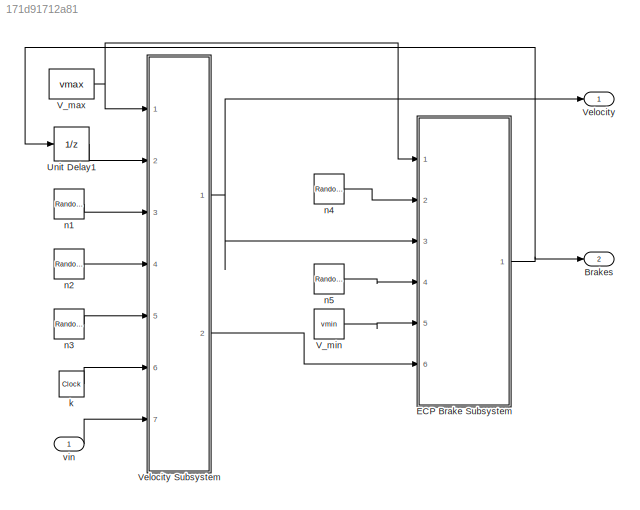
MODEL slx_171d91712a81
KIND model
CONFIG AbsTol = auto
CONFIG EnableMultiTasking = off
CONFIG FixedStep = auto
CONFIG MaxStep = auto
CONFIG MinStep = auto
CONFIG RelTol = 1e-3
CONFIG SampleTimeConstraint = Unconstrained
CONFIG Solver = VariableStepAuto
CONFIG SolverName = VariableStepAuto
CONFIG StartTime = 1.0
CONFIG StopTime = 700.0
BLOCK [Outport] Brakes
  IconDisplay = Port number
  Port = 2
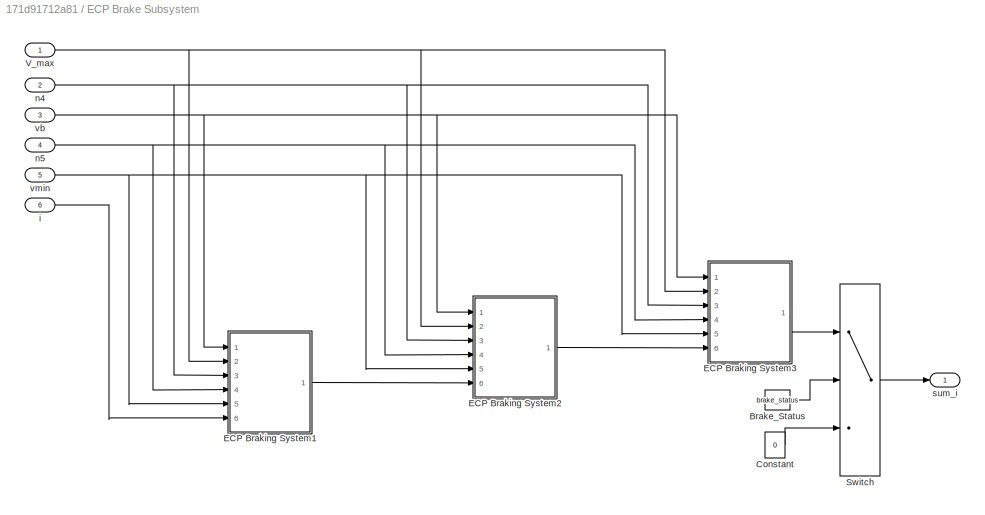
BLOCK [SubSystem] ECP Brake Subsystem
  Ports = [6, 1]
  RequestExecContextInheritance = off
BLOCK [Constant] ECP Brake Subsystem/Brake_Status
  Value = brake_status
BLOCK [Constant] ECP Brake Subsystem/Constant
  Value = 0
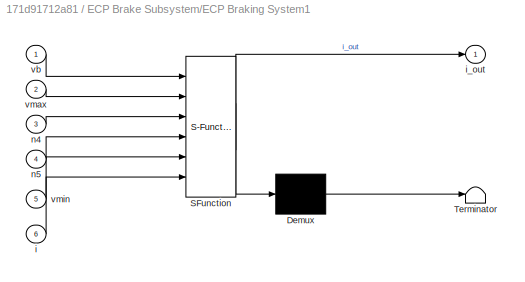
BLOCK [SubSystem] ECP Brake Subsystem/ECP Braking System1
  ErrorFcn = Stateflow.Translate.translate
  PermitHierarchicalResolution = ExplicitOnly
  Ports = [6, 1]
  RequestExecContextInheritance = off
  SFBlockType = Chart
  TreatAsAtomicUnit = on
BLOCK [Demux] ECP Brake Subsystem/ECP Braking System1/ Demux 
  Outputs = 1
  Ports = [1, 1]
BLOCK [S-Function] ECP Brake Subsystem/ECP Braking System1/ SFunction 
  EnableBusSupport = on
  FunctionName = sf_sfun
  PortCounts = [6 2]
  Ports = [6, 2]
  SFcnIsStateOwnerBlock = off
  SFunctionDeploymentMode = off
  Tag = Stateflow S-Function train_system_3Brakes 1
BLOCK [Terminator] ECP Brake Subsystem/ECP Braking System1/ Terminator 
BLOCK [Inport] ECP Brake Subsystem/ECP Braking System1/i
  IconDisplay = Port number
  Port = 6
BLOCK [Outport] ECP Brake Subsystem/ECP Braking System1/i_out
  IconDisplay = Port number
BLOCK [Inport] ECP Brake Subsystem/ECP Braking System1/n4
  IconDisplay = Port number
  Port = 3
BLOCK [Inport] ECP Brake Subsystem/ECP Braking System1/n5
  IconDisplay = Port number
  Port = 4
BLOCK [Inport] ECP Brake Subsystem/ECP Braking System1/vb
  IconDisplay = Port number
BLOCK [Inport] ECP Brake Subsystem/ECP Braking System1/vmax
  IconDisplay = Port number
  Port = 2
BLOCK [Inport] ECP Brake Subsystem/ECP Braking System1/vmin
  IconDisplay = Port number
  Port = 5
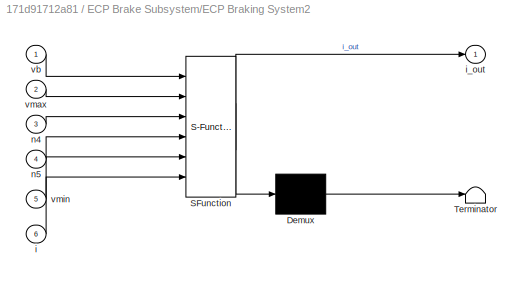
BLOCK [SubSystem] ECP Brake Subsystem/ECP Braking System2
  ErrorFcn = Stateflow.Translate.translate
  PermitHierarchicalResolution = ExplicitOnly
  Ports = [6, 1]
  RequestExecContextInheritance = off
  SFBlockType = Chart
  TreatAsAtomicUnit = on
BLOCK [Demux] ECP Brake Subsystem/ECP Braking System2/ Demux 
  Outputs = 1
  Ports = [1, 1]
BLOCK [S-Function] ECP Brake Subsystem/ECP Braking System2/ SFunction 
  EnableBusSupport = on
  FunctionName = sf_sfun
  PortCounts = [6 2]
  Ports = [6, 2]
  SFcnIsStateOwnerBlock = off
  SFunctionDeploymentMode = off
  Tag = Stateflow S-Function train_system_3Brakes 2
BLOCK [Terminator] ECP Brake Subsystem/ECP Braking System2/ Terminator 
BLOCK [Inport] ECP Brake Subsystem/ECP Braking System2/i
  IconDisplay = Port number
  Port = 6
BLOCK [Outport] ECP Brake Subsystem/ECP Braking System2/i_out
  IconDisplay = Port number
BLOCK [Inport] ECP Brake Subsystem/ECP Braking System2/n4
  IconDisplay = Port number
  Port = 3
BLOCK [Inport] ECP Brake Subsystem/ECP Braking System2/n5
  IconDisplay = Port number
  Port = 4
BLOCK [Inport] ECP Brake Subsystem/ECP Braking System2/vb
  IconDisplay = Port number
BLOCK [Inport] ECP Brake Subsystem/ECP Braking System2/vmax
  IconDisplay = Port number
  Port = 2
BLOCK [Inport] ECP Brake Subsystem/ECP Braking System2/vmin
  IconDisplay = Port number
  Port = 5
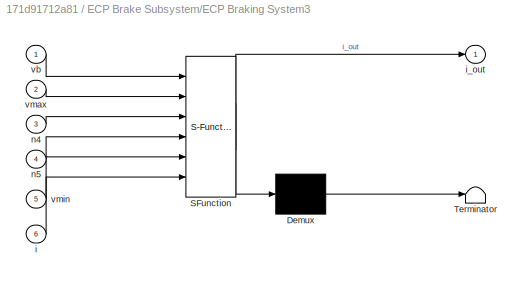
BLOCK [SubSystem] ECP Brake Subsystem/ECP Braking System3
  ErrorFcn = Stateflow.Translate.translate
  PermitHierarchicalResolution = ExplicitOnly
  Ports = [6, 1]
  RequestExecContextInheritance = off
  SFBlockType = Chart
  TreatAsAtomicUnit = on
BLOCK [Demux] ECP Brake Subsystem/ECP Braking System3/ Demux 
  Outputs = 1
  Ports = [1, 1]
BLOCK [S-Function] ECP Brake Subsystem/ECP Braking System3/ SFunction 
  EnableBusSupport = on
  FunctionName = sf_sfun
  PortCounts = [6 2]
  Ports = [6, 2]
  SFcnIsStateOwnerBlock = off
  SFunctionDeploymentMode = off
  Tag = Stateflow S-Function train_system_3Brakes 7
BLOCK [Terminator] ECP Brake Subsystem/ECP Braking System3/ Terminator 
BLOCK [Inport] ECP Brake Subsystem/ECP Braking System3/i
  IconDisplay = Port number
  Port = 6
BLOCK [Outport] ECP Brake Subsystem/ECP Braking System3/i_out
  IconDisplay = Port number
BLOCK [Inport] ECP Brake Subsystem/ECP Braking System3/n4
  IconDisplay = Port number
  Port = 3
BLOCK [Inport] ECP Brake Subsystem/ECP Braking System3/n5
  IconDisplay = Port number
  Port = 4
BLOCK [Inport] ECP Brake Subsystem/ECP Braking System3/vb
  IconDisplay = Port number
BLOCK [Inport] ECP Brake Subsystem/ECP Braking System3/vmax
  IconDisplay = Port number
  Port = 2
BLOCK [Inport] ECP Brake Subsystem/ECP Braking System3/vmin
  IconDisplay = Port number
  Port = 5
BLOCK [Switch] ECP Brake Subsystem/Switch
  Criteria = u2 > Threshold
  InputSameDT = off
  SaturateOnIntegerOverflow = off
BLOCK [Inport] ECP Brake Subsystem/V_max
  IconDisplay = Port number
BLOCK [Inport] ECP Brake Subsystem/i
  IconDisplay = Port number
  Port = 6
BLOCK [Inport] ECP Brake Subsystem/n4
  IconDisplay = Port number
  Port = 2
BLOCK [Inport] ECP Brake Subsystem/n5
  IconDisplay = Port number
  Port = 4
BLOCK [Outport] ECP Brake Subsystem/sum_i
  IconDisplay = Port number
BLOCK [Inport] ECP Brake Subsystem/vb
  IconDisplay = Port number
  Port = 3
BLOCK [Inport] ECP Brake Subsystem/vmin
  IconDisplay = Port number
  Port = 5
BLOCK [UnitDelay] Unit Delay1
  InputProcessing = Elements as channels (sample based)
  SampleTime = -1
BLOCK [Constant] V_max
  Value = vmax
BLOCK [Constant] V_min
  Value = vmin
BLOCK [Outport] Velocity
  IconDisplay = Port number
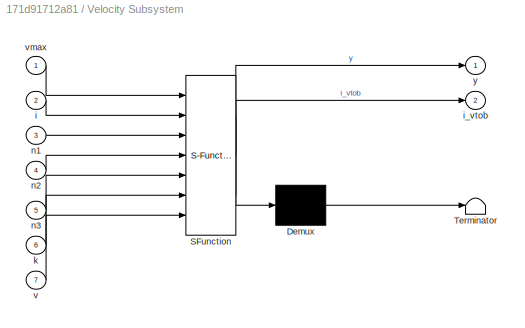
BLOCK [SubSystem] Velocity Subsystem
  ErrorFcn = Stateflow.Translate.translate
  PermitHierarchicalResolution = ExplicitOnly
  Ports = [7, 2]
  RequestExecContextInheritance = off
  SFBlockType = Chart
  TreatAsAtomicUnit = on
BLOCK [Demux] Velocity Subsystem/ Demux 
  Outputs = 1
  Ports = [1, 1]
BLOCK [S-Function] Velocity Subsystem/ SFunction 
  EnableBusSupport = on
  FunctionName = sf_sfun
  PortCounts = [7 3]
  Ports = [7, 3]
  SFcnIsStateOwnerBlock = off
  SFunctionDeploymentMode = off
  Tag = Stateflow S-Function train_system_3Brakes 3
BLOCK [Terminator] Velocity Subsystem/ Terminator 
BLOCK [Inport] Velocity Subsystem/i
  IconDisplay = Port number
  Port = 2
BLOCK [Outport] Velocity Subsystem/i_vtob
  IconDisplay = Port number
  Port = 2
BLOCK [Inport] Velocity Subsystem/k
  IconDisplay = Port number
  Port = 6
BLOCK [Inport] Velocity Subsystem/n1
  IconDisplay = Port number
  Port = 3
BLOCK [Inport] Velocity Subsystem/n2
  IconDisplay = Port number
  Port = 4
BLOCK [Inport] Velocity Subsystem/n3
  IconDisplay = Port number
  Port = 5
BLOCK [Inport] Velocity Subsystem/v
  IconDisplay = Port number
  Port = 7
BLOCK [Inport] Velocity Subsystem/vmax
  IconDisplay = Port number
BLOCK [Outport] Velocity Subsystem/y
  IconDisplay = Port number
BLOCK [Clock] k
BLOCK [RandomNumber] n1
  SampleTime = 0.1
BLOCK [RandomNumber] n2
  SampleTime = 0.1
  Variance = 0.1
BLOCK [RandomNumber] n3
  SampleTime = 0.1
  Variance = 0.3
BLOCK [RandomNumber] n4
  SampleTime = 0.1
  Variance = 3
BLOCK [RandomNumber] n5
  SampleTime = 0.1
  Variance = 3
BLOCK [Inport] vin
  IconDisplay = Port number
LINE ECP Brake Subsystem/Brake_Status:1 -> ECP Brake Subsystem/Switch:2
LINE ECP Brake Subsystem/Constant:1 -> ECP Brake Subsystem/Switch:3
LINE ECP Brake Subsystem/ECP Braking System1:1 -> ECP Brake Subsystem/ECP Braking System2:6
LINE ECP Brake Subsystem/ECP Braking System2:1 -> ECP Brake Subsystem/ECP Braking System3:6
LINE ECP Brake Subsystem/ECP Braking System3:1 -> ECP Brake Subsystem/Switch:1
LINE ECP Brake Subsystem/Switch:1 -> ECP Brake Subsystem/sum_i:1
NET ECP Brake Subsystem/V_max:1 -> ECP Brake Subsystem/ECP Braking System1:2, ECP Brake Subsystem/ECP Braking System2:2, ECP Brake Subsystem/ECP Braking System3:2
LINE ECP Brake Subsystem/i:1 -> ECP Brake Subsystem/ECP Braking System1:6
NET ECP Brake Subsystem/n4:1 -> ECP Brake Subsystem/ECP Braking System1:3, ECP Brake Subsystem/ECP Braking System2:3, ECP Brake Subsystem/ECP Braking System3:3
NET ECP Brake Subsystem/n5:1 -> ECP Brake Subsystem/ECP Braking System1:4, ECP Brake Subsystem/ECP Braking System2:4, ECP Brake Subsystem/ECP Braking System3:4
NET ECP Brake Subsystem/vb:1 -> ECP Brake Subsystem/ECP Braking System1:1, ECP Brake Subsystem/ECP Braking System2:1, ECP Brake Subsystem/ECP Braking System3:1
NET ECP Brake Subsystem/vmin:1 -> ECP Brake Subsystem/ECP Braking System1:5, ECP Brake Subsystem/ECP Braking System2:5, ECP Brake Subsystem/ECP Braking System3:5
NET ECP Brake Subsystem:1 -> Brakes:1, Unit Delay1:1
LINE Unit Delay1:1 -> Velocity Subsystem:2
NET V_max:1 -> ECP Brake Subsystem:1, Velocity Subsystem:1
LINE V_min:1 -> ECP Brake Subsystem:5
NET Velocity Subsystem:1 -> ECP Brake Subsystem:3, Velocity:1
LINE Velocity Subsystem:2 -> ECP Brake Subsystem:6
LINE k:1 -> Velocity Subsystem:6
LINE n1:1 -> Velocity Subsystem:3
LINE n2:1 -> Velocity Subsystem:4
LINE n3:1 -> Velocity Subsystem:5
LINE n4:1 -> ECP Brake Subsystem:2
LINE n5:1 -> ECP Brake Subsystem:4
LINE vin:1 -> Velocity Subsystem:7
note: NET lines group one-source signal fan-out (src -> all destinations, sorted); 1:1 wires keep LINE
CHART ECP Brake Subsystem/ECP Braking System1 states=5 transitions=6
  STATE_LABEL 'q1_5\nc1 = c1;\nc2 = c2;\ndisp("Fail1");'
  STATE_LABEL 'q1_1\nc1 = n4;\nc2 = c2;\n'
  STATE_LABEL 'q1_2\nc1 = c1 + 1;\nc2 = c2;\np = randi(1000) <= 1000;'
  STATE_LABEL 'q1_4\nc1 = c1;\nc2 = c2 + 1;\n'
  STATE_LABEL 'q1_3\nc1 = c1;\nc2 = n5;\n'
CHART ECP Brake Subsystem/ECP Braking System2 states=5 transitions=6
  STATE_LABEL 'q1_1\nc1 = n4;\nc2 = c2;'
  STATE_LABEL 'q1_2\nc1 = c1 + 1;\nc2 = c2;\np = randi(1000) <= 1000;'
  STATE_LABEL 'q1_5\nc1 = c1;\nc2 = c2;\ndisp("Fail2");'
  STATE_LABEL 'q1_4\nc1 = c1;\nc2 = c2 + 1;\n'
  STATE_LABEL 'q1_3\nc1 = c1;\nc2 = n5;\n'
CHART Velocity Subsystem states=3 transitions=4
  STATE_LABEL 'qv_2\nnext = prev-0.5*max(0,i-1)+n2;\ny = next + n3; prev = y;\ni_vtob = i;'
  STATE_LABEL 'qv_1\nprev = v;\nnext = 0.1353*prev+0.8647*[25+2.5*sin(k)]+n1;\ny = next + n3; prev = y;\ni_vtob = i;'
  STATE_LABEL 'qv_3\nnext = prev-0.5*max(0,i-1)+n3;\ny = next + n3; prev = y;\ni_vtob = i;'
CHART ECP Brake Subsystem/ECP Braking System3 states=5 transitions=6
  STATE_LABEL 'q1_1\nc1 = n4;\nc2 = c2;'
  STATE_LABEL 'q1_2\nc1 = c1 + 1;\nc2 = c2;\np = randi(1000) <= 1000;'
  STATE_LABEL 'q1_5\nc1 = c1;\nc2 = c2;\ndisp("Fail6");'
  STATE_LABEL 'q1_4\nc1 = c1;\nc2 = c2 + 1;\n'
  STATE_LABEL 'q1_3\nc1 = c1;\nc2 = n5;\n'
